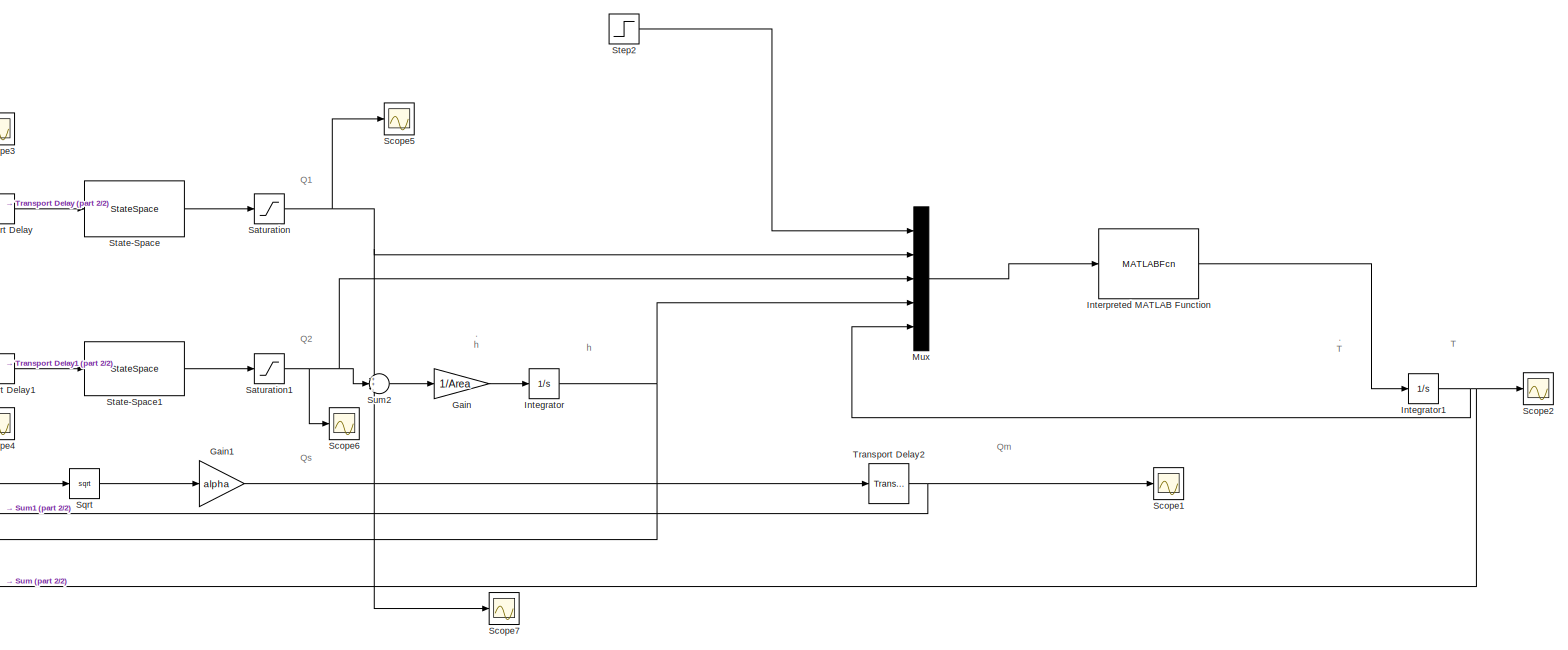
[diagram: root canvas - part 1/2, right side, full height]
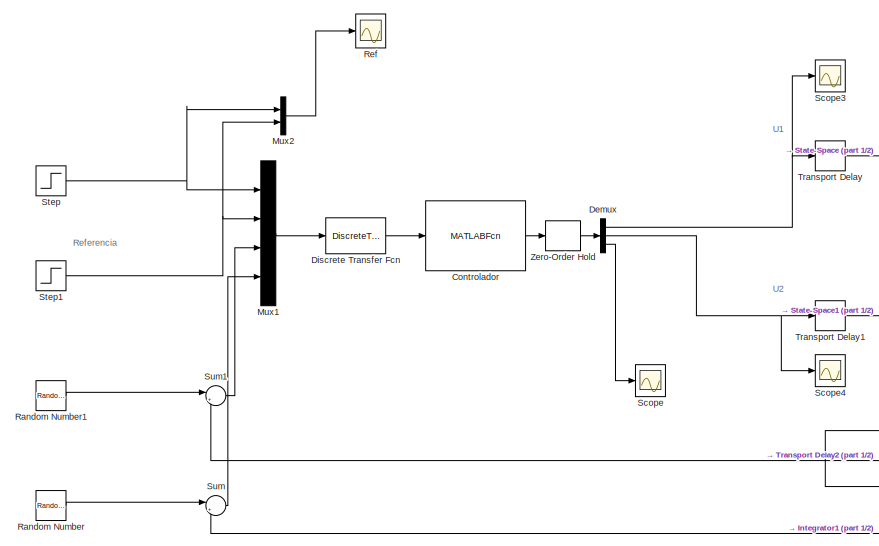
[diagram: root canvas - part 2/2, left side, full height]
MODEL slx_2be25b2d3d81
KIND model
CONFIG AbsTol = auto
CONFIG EnableMultiTasking = off
CONFIG FixedStep = auto
CONFIG MaxStep = auto
CONFIG MinStep = auto
CONFIG RelTol = 1e-3
CONFIG SampleTimeConstraint = Unconstrained
CONFIG Solver = VariableStepAuto
CONFIG SolverName = VariableStepAuto
CONFIG StartTime = 0.0
CONFIG StopTime = tsim
BLOCK [MATLABFcn] Controlador
  MATLABFcn = ControlBorrosoIncrementalPolar([u(1); u(2)], [u(3); u(4)], [0 4; 0 4], FuzzySetArg, FuzzySetMod)
  OutputDimensions = 4
  Ports = [1, 1]
BLOCK [Demux] Demux
  Outputs = [1 1 2]
  Ports = [1, 3]
BLOCK [DiscreteTransferFcn] Discrete Transfer Fcn
  Denominator = 1
  InputPortMap = u0
  Numerator = 1
  Ports = [1, 1]
  SampleTime = tmuestra
BLOCK [Gain] Gain
  Gain = 1/Area
BLOCK [Gain] Gain1
  Gain = alpha
BLOCK [Integrator] Integrator
  InitialCondition = (Qi/alpha)^2
  LimitOutput = on
  LowerSaturationLimit = 0
  Ports = [1, 1]
BLOCK [Integrator] Integrator1
  InitialCondition = Ti
  LowerSaturationLimit = 0
  Ports = [1, 1]
BLOCK [MATLABFcn] Interpreted MATLAB Function
  MATLABFcn = 1/(Area*u(4))*((T1-u(5))*u(2)+(T2-u(5))*u(3)-Kp*(u(5)-u(1)));
  OutputDimensions = 1
  Ports = [1, 1]
BLOCK [Mux] Mux
  DisplayOption = bar
  Inputs = 5
  Ports = [5, 1]
BLOCK [Mux] Mux1
  DisplayOption = bar
  Ports = [4, 1]
BLOCK [Mux] Mux2
  DisplayOption = bar
  Inputs = 2
  Ports = [2, 1]
BLOCK [RandomNumber] Random Number
  SampleTime = tmuestra
  Seed = 4568303
  Variance = var_ruido*10
BLOCK [RandomNumber] Random Number1
  SampleTime = tmuestra
  Seed = 2227289
  Variance = var_ruido
BLOCK [Scope] Ref
  Floating = off
  NumInputPorts = 1
  Ports = [1]
  ScopeSpecificationString = Simulink.scopes.TimeScopeBlockCfg('CurrentConfiguration', extmgr.ConfigurationSet(extmgr.Configuration('Core','General UI',true),extmgr.Configuration('Core','Source UI',true),extmgr.Configuration('Sources','WiredSimulink',true,'DataLoggingVariableName','Ref','DataLogging',true,'DataLoggingSaveFormat','Array','SampleTime','tmuestra'),extmgr.Configuration('Visuals','Time Domain',true,'SerializedDisp...<+1471ch>
BLOCK [Saturate] Saturation
  LowerLimit = 0
  UpperLimit = inf
BLOCK [Saturate] Saturation1
  LowerLimit = 0
  UpperLimit = inf
BLOCK [Scope] Scope
  Floating = off
  NumInputPorts = 1
  Ports = [1]
  ScopeSpecificationString = Simulink.scopes.TimeScopeBlockCfg('CurrentConfiguration', extmgr.ConfigurationSet(extmgr.Configuration('Core','General UI',true),extmgr.Configuration('Core','Source UI',true),extmgr.Configuration('Sources','WiredSimulink',true,'DataLoggingVariableName','ErrorObs','DataLogging',true,'DataLoggingSaveFormat','Array','SampleTime','tmuestra'),extmgr.Configuration('Visuals','Time Domain',true,'Serialize...<+1481ch>
BLOCK [Scope] Scope1
  Floating = off
  NumInputPorts = 1
  Ports = [1]
  ScopeSpecificationString = Simulink.scopes.TimeScopeBlockCfg('CurrentConfiguration', extmgr.ConfigurationSet(extmgr.Configuration('Core','General UI',true),extmgr.Configuration('Core','Source UI',true),extmgr.Configuration('Sources','WiredSimulink',true,'DataLoggingVariableName','Qm','DataLogging',true,'DataLoggingSaveFormat','Array','SampleTime','tmuestra'),extmgr.Configuration('Visuals','Time Domain',true,'SerializedDispl...<+1495ch>
BLOCK [Scope] Scope2
  Floating = off
  NumInputPorts = 1
  Ports = [1]
  ScopeSpecificationString = Simulink.scopes.TimeScopeBlockCfg('CurrentConfiguration', extmgr.ConfigurationSet(extmgr.Configuration('Core','General UI',true),extmgr.Configuration('Core','Source UI',true),extmgr.Configuration('Sources','WiredSimulink',true,'DataLoggingVariableName','T','DataLogging',true,'DataLoggingSaveFormat','Array','SampleTime','tmuestra'),extmgr.Configuration('Visuals','Time Domain',true,'SerializedDispla...<+1484ch>
BLOCK [Scope] Scope3
  Floating = off
  NumInputPorts = 1
  Ports = [1]
  ScopeSpecificationString = Simulink.scopes.TimeScopeBlockCfg('CurrentConfiguration', extmgr.ConfigurationSet(extmgr.Configuration('Core','General UI',true),extmgr.Configuration('Core','Source UI',true),extmgr.Configuration('Sources','WiredSimulink',true,'DataLoggingVariableName','U1','DataLogging',true,'DataLoggingSaveFormat','Array','SampleTime','tmuestra'),extmgr.Configuration('Visuals','Time Domain',true,'SerializedDispl...<+1464ch>
BLOCK [Scope] Scope4
  Floating = off
  NumInputPorts = 1
  Ports = [1]
  ScopeSpecificationString = Simulink.scopes.TimeScopeBlockCfg('CurrentConfiguration', extmgr.ConfigurationSet(extmgr.Configuration('Core','General UI',true),extmgr.Configuration('Core','Source UI',true),extmgr.Configuration('Sources','WiredSimulink',true,'DataLoggingVariableName','U2','DataLogging',true,'DataLoggingSaveFormat','Array','SampleTime','tmuestra'),extmgr.Configuration('Visuals','Time Domain',true,'SerializedDispl...<+1459ch>
BLOCK [Scope] Scope5
  Floating = off
  NumInputPorts = 1
  Ports = [1]
  ScopeSpecificationString = Simulink.scopes.TimeScopeBlockCfg('CurrentConfiguration', extmgr.ConfigurationSet(extmgr.Configuration('Core','General UI',true),extmgr.Configuration('Core','Source UI',true),extmgr.Configuration('Sources','WiredSimulink',true,'DataLoggingVariableName','Q1','DataLogging',true,'DataLoggingSaveFormat','Array','SampleTime','tmuestra'),extmgr.Configuration('Visuals','Time Domain',true,'SerializedDispl...<+1476ch>
BLOCK [Scope] Scope6
  Floating = off
  NumInputPorts = 1
  Ports = [1]
  ScopeSpecificationString = Simulink.scopes.TimeScopeBlockCfg('CurrentConfiguration', extmgr.ConfigurationSet(extmgr.Configuration('Core','General UI',true),extmgr.Configuration('Core','Source UI',true),extmgr.Configuration('Sources','WiredSimulink',true,'DataLoggingVariableName','Q2','DataLogging',true,'DataLoggingSaveFormat','Array','SampleTime','tmuestra'),extmgr.Configuration('Visuals','Time Domain',true,'SerializedDispl...<+1490ch>
BLOCK [Scope] Scope7
  Floating = off
  NumInputPorts = 1
  Ports = [1]
  ScopeSpecificationString = Simulink.scopes.TimeScopeBlockCfg('CurrentConfiguration', extmgr.ConfigurationSet(extmgr.Configuration('Core','General UI',true),extmgr.Configuration('Core','Source UI',true),extmgr.Configuration('Sources','WiredSimulink',true,'DataLoggingVariableName','Q','DataLogging',true,'DataLoggingSaveFormat','Array','SampleTime','tmuestra'),extmgr.Configuration('Visuals','Time Domain',true,'SerializedDispla...<+1466ch>
BLOCK [Sqrt] Sqrt
BLOCK [StateSpace] State-Space
  A = -1/tau1
  B = K1/tau1
  D = 0
  InitialCondition = Ui(1)
  Ports = [1, 1]
BLOCK [StateSpace] State-Space1
  A = -1/tau2
  B = K2/tau2
  D = 0
  InitialCondition = Ui(2)
  Ports = [1, 1]
BLOCK [Step] Step
  After = Yr(1)
  Before = Qi
  SampleTime = tmuestra
  Time = 10
BLOCK [Step] Step1
  After = Yr(2)
  Before = Ti
  SampleTime = tmuestra
  Time = 10
BLOCK [Step] Step2
  After = Tef
  Before = Te
  SampleTime = tmuestra
  Time = 60
BLOCK [Sum] Sum
  Inputs = |++
  Ports = [2, 1]
BLOCK [Sum] Sum1
  Inputs = |++
  Ports = [2, 1]
BLOCK [Sum] Sum2
  Inputs = ++|-
  Ports = [3, 1]
BLOCK [TransportDelay] Transport Delay
  DelayTime = tdelay1
  InitialOutput = Ui(1)
  Ports = [1, 1]
BLOCK [TransportDelay] Transport Delay1
  DelayTime = tdelay2
  InitialOutput = Ui(2)
  Ports = [1, 1]
BLOCK [TransportDelay] Transport Delay2
  DelayTime = tdelayQ
  InitialOutput = Qi
  Ports = [1, 1]
BLOCK [ZeroOrderHold] Zero-Order Hold
  SampleTime = tmuestra
ANNOTATION (root): . h
ANNOTATION (root): . T
ANNOTATION (root): Q1
ANNOTATION (root): Q2
ANNOTATION (root): Qm
ANNOTATION (root): Qs
ANNOTATION (root): Referencia
ANNOTATION (root): T
ANNOTATION (root): U1
ANNOTATION (root): U2
ANNOTATION (root): h
LINE Controlador:1 -> Zero-Order Hold:1
NET Demux:1 -> Scope3:1, Transport Delay:1
NET Demux:2 -> Scope4:1, Transport Delay1:1
LINE Demux:3 -> Scope:1
LINE Discrete Transfer Fcn:1 -> Controlador:1
NET Gain1:1 -> Scope7:1, Sum2:3, Transport Delay2:1
LINE Gain:1 -> Integrator:1
NET Integrator1:1 -> Mux:5, Scope2:1, Sum:2
NET Integrator:1 -> Mux:4, Sqrt:1
LINE Interpreted MATLAB Function:1 -> Integrator1:1
LINE Mux1:1 -> Discrete Transfer Fcn:1
LINE Mux2:1 -> Ref:1
LINE Mux:1 -> Interpreted MATLAB Function:1
LINE Random Number1:1 -> Sum1:1
LINE Random Number:1 -> Sum:1
NET Saturation1:1 -> Mux:3, Scope6:1, Sum2:2
NET Saturation:1 -> Mux:2, Scope5:1, Sum2:1
LINE Sqrt:1 -> Gain1:1
LINE State-Space1:1 -> Saturation1:1
LINE State-Space:1 -> Saturation:1
NET Step1:1 -> Mux1:2, Mux2:2
LINE Step2:1 -> Mux:1
NET Step:1 -> Mux1:1, Mux2:1
LINE Sum1:1 -> Mux1:3
LINE Sum2:1 -> Gain:1
LINE Sum:1 -> Mux1:4
LINE Transport Delay1:1 -> State-Space1:1
NET Transport Delay2:1 -> Scope1:1, Sum1:2
LINE Transport Delay:1 -> State-Space:1
LINE Zero-Order Hold:1 -> Demux:1
note: NET lines group one-source signal fan-out (src -> all destinations, sorted); 1:1 wires keep LINE
